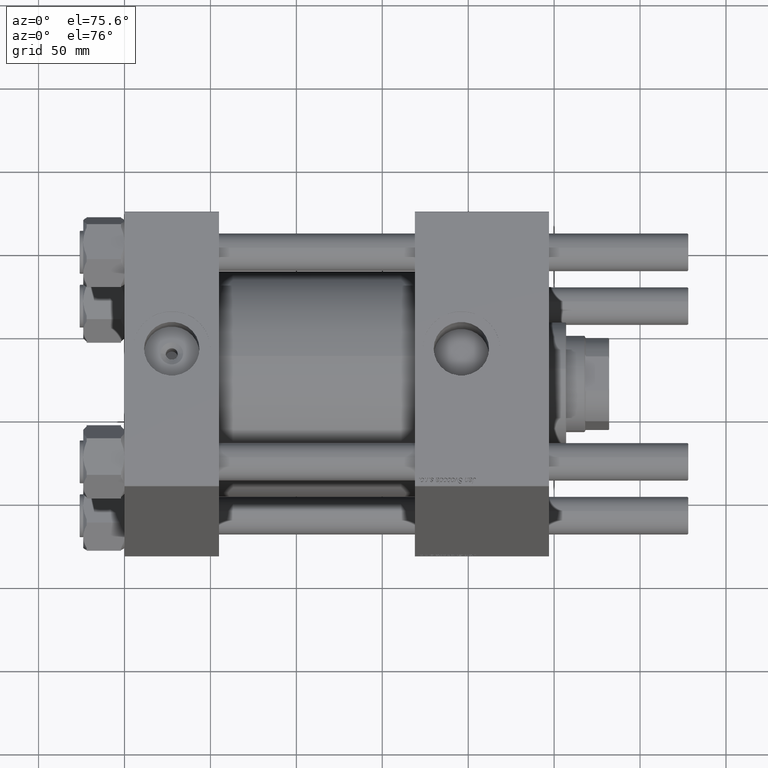
[diagram: clean part render]
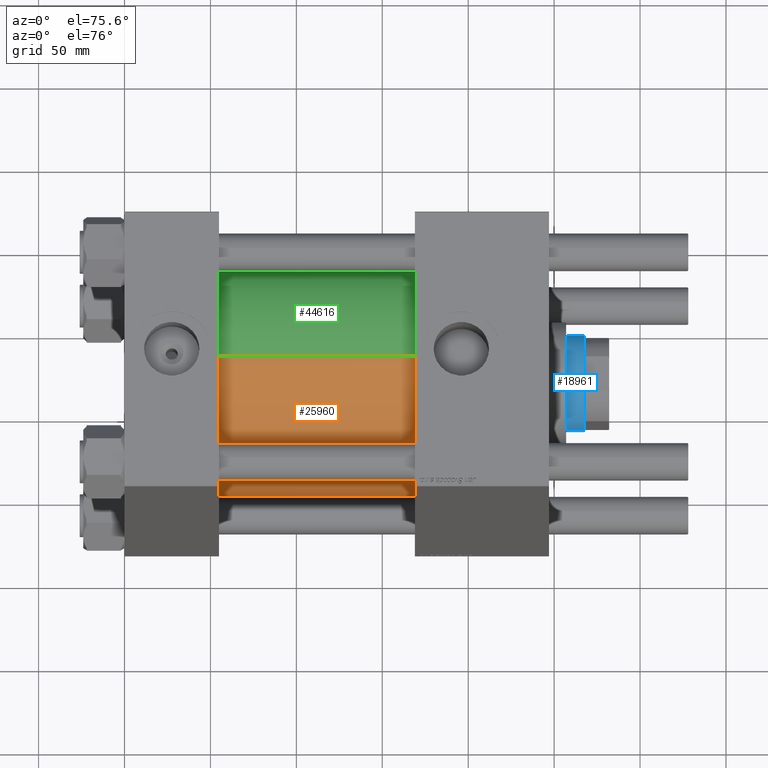
[diagram: same view with three faces highlighted in distinct colors, each labeled with its STEP entity id]
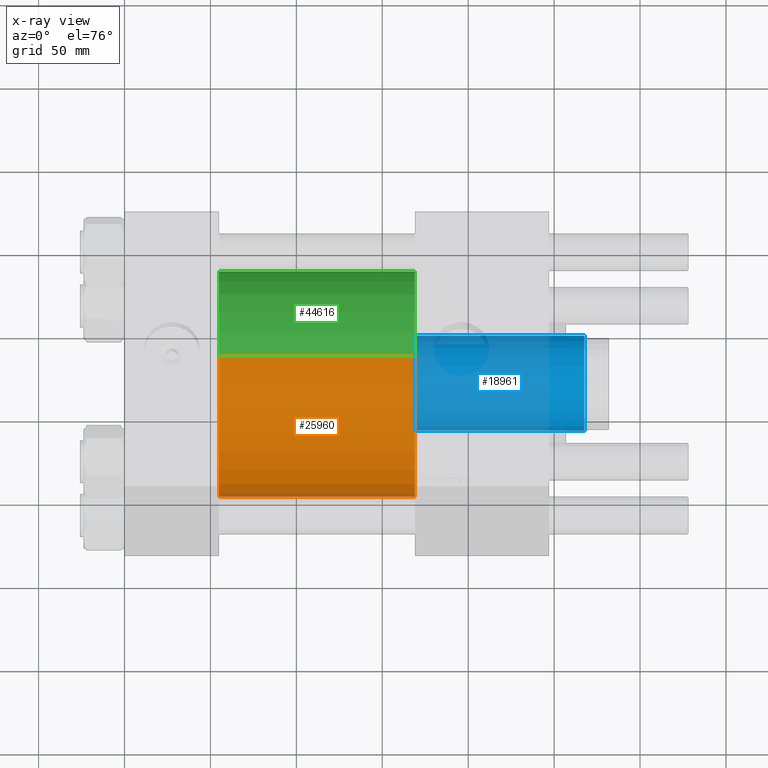
[diagram: x-ray of the same camera — body ghosted, the three highlighted faces saturated]
A machine part, auxiliary view with three faces highlighted in distinct colors.
The next image is the same camera in x-ray (body ghosted, the three faces saturated) — at least one of them is partly hidden behind the body in this view.
Their STEP definitions:

[orange] entity #25960 — the highlighted cylindrical surface (partial cylindrical patch) has radius 65.5 mm, axis along (-1, -0, -0).
#309 = DIRECTION ( 'NONE',  ( -1.000000000000000000, -0.000000000000000000, -0.000000000000000000 ) ) ;
#692 = CARTESIAN_POINT ( 'NONE',  ( 54.99999999999999289, -2.602085213965210642E-15, 0.000000000000000000 ) ) ;
#1343 = CARTESIAN_POINT ( 'NONE',  ( 169.0000000000000000, 5.419351320449953395E-15, -65.50000000000001421 ) ) ;
#2326 = CARTESIAN_POINT ( 'NONE',  ( 169.0000000000000000, -2.602085213965210642E-15, 0.000000000000000000 ) ) ;
#3077 = VECTOR ( 'NONE', #37354, 1000.000000000000000 ) ;
#4194 = CIRCLE ( 'NONE', #44869, 65.50000000000001421 ) ;
#5454 = CARTESIAN_POINT ( 'NONE',  ( 169.0000000000000000, -2.602085213965210642E-15, 65.50000000000001421 ) ) ;
#5667 = ORIENTED_EDGE ( 'NONE', *, *, #10300, .F. ) ;
#7617 = EDGE_CURVE ( 'NONE', #14203, #43502, #30720, .T. ) ;
#7890 = ORIENTED_EDGE ( 'NONE', *, *, #7617, .F. ) ;
#9128 = CARTESIAN_POINT ( 'NONE',  ( 169.0000000000000000, -2.602085213965210642E-15, 0.000000000000000000 ) ) ;
#9375 = CIRCLE ( 'NONE', #53746, 65.50000000000001421 ) ;
#10300 = EDGE_CURVE ( 'NONE', #54326, #14203, #9375, .T. ) ;
#10948 = CARTESIAN_POINT ( 'NONE',  ( 54.99999999999999289, 5.419351320449953395E-15, -65.50000000000001421 ) ) ;
#14203 = VERTEX_POINT ( 'NONE', #1343 ) ;
#14324 = DIRECTION ( 'NONE',  ( 0.000000000000000000, 0.000000000000000000, -1.000000000000000000 ) ) ;
#14601 = ORIENTED_EDGE ( 'NONE', *, *, #21754, .T. ) ;
#15437 = EDGE_LOOP ( 'NONE', ( #7890, #5667, #14601, #41701 ) ) ;
#16175 = VERTEX_POINT ( 'NONE', #56123 ) ;
#18362 = DIRECTION ( 'NONE',  ( 1.000000000000000000, -0.000000000000000000, -0.000000000000000000 ) ) ;
#19997 = DIRECTION ( 'NONE',  ( -1.000000000000000000, -0.000000000000000000, -0.000000000000000000 ) ) ;
#21754 = EDGE_CURVE ( 'NONE', #54326, #16175, #28123, .T. ) ;
#25960 = ADVANCED_FACE ( 'NONE', ( #33869 ), #46312, .T. ) ;
#26799 = DIRECTION ( 'NONE',  ( 1.000000000000000000, 0.000000000000000000, 0.000000000000000000 ) ) ;
#28123 = LINE ( 'NONE', #28408, #3077 ) ;
#28408 = CARTESIAN_POINT ( 'NONE',  ( 169.0000000000000000, -2.602085213965210642E-15, 65.50000000000001421 ) ) ;
#29617 = VECTOR ( 'NONE', #309, 1000.000000000000000 ) ;
#30720 = LINE ( 'NONE', #39956, #29617 ) ;
#32792 = DIRECTION ( 'NONE',  ( 0.000000000000000000, 0.000000000000000000, 1.000000000000000000 ) ) ;
#33869 = FACE_OUTER_BOUND ( 'NONE', #15437, .T. ) ;
#37354 = DIRECTION ( 'NONE',  ( -1.000000000000000000, -0.000000000000000000, -0.000000000000000000 ) ) ;
#37632 = DIRECTION ( 'NONE',  ( 0.000000000000000000, 0.000000000000000000, 1.000000000000000000 ) ) ;
#39956 = CARTESIAN_POINT ( 'NONE',  ( 169.0000000000000000, 5.419351320449953395E-15, -65.50000000000001421 ) ) ;
#41701 = ORIENTED_EDGE ( 'NONE', *, *, #44081, .T. ) ;
#43502 = VERTEX_POINT ( 'NONE', #10948 ) ;
#44081 = EDGE_CURVE ( 'NONE', #16175, #43502, #4194, .T. ) ;
#44869 = AXIS2_PLACEMENT_3D ( 'NONE', #692, #18362, #32792 ) ;
#46312 = CYLINDRICAL_SURFACE ( 'NONE', #54962, 65.50000000000001421 ) ;
#53746 = AXIS2_PLACEMENT_3D ( 'NONE', #9128, #26799, #14324 ) ;
#54326 = VERTEX_POINT ( 'NONE', #5454 ) ;
#54962 = AXIS2_PLACEMENT_3D ( 'NONE', #2326, #19997, #37632 ) ;
#56123 = CARTESIAN_POINT ( 'NONE',  ( 54.99999999999999289, -2.602085213965210642E-15, 65.50000000000001421 ) ) ;

[blue] entity #18961 — the highlighted cylindrical surface (partial cylindrical patch) has radius 28 mm, axis along (-1, 0, 0).
#1183 = DIRECTION ( 'NONE',  ( -0.000000000000000000, -0.000000000000000000, -1.000000000000000000 ) ) ;
#2202 = EDGE_CURVE ( 'NONE', #14046, #22611, #10168, .T. ) ;
#2395 = CARTESIAN_POINT ( 'NONE',  ( -28.00000000000000000, 0.000000000000000000, 213.0000000000000000 ) ) ;
#8177 = VERTEX_POINT ( 'NONE', #41165 ) ;
#9659 = EDGE_CURVE ( 'NONE', #56250, #8177, #42039, .T. ) ;
#10168 = LINE ( 'NONE', #28672, #26761 ) ;
#10221 = CYLINDRICAL_SURFACE ( 'NONE', #23379, 28.00000000000000000 ) ;
#11825 = CARTESIAN_POINT ( 'NONE',  ( 28.00000000000000000, 3.429011037612589276E-15, 212.5000000000000000 ) ) ;
#12061 = EDGE_LOOP ( 'NONE', ( #30792, #53890, #15997, #27213 ) ) ;
#14046 = VERTEX_POINT ( 'NONE', #11825 ) ;
#15427 = EDGE_CURVE ( 'NONE', #14046, #56250, #40019, .T. ) ;
#15997 = ORIENTED_EDGE ( 'NONE', *, *, #9659, .T. ) ;
#16186 = EDGE_CURVE ( 'NONE', #8177, #22611, #39103, .T. ) ;
#16470 = DIRECTION ( 'NONE',  ( 0.000000000000000000, 0.000000000000000000, 1.000000000000000000 ) ) ;
#18961 = ADVANCED_FACE ( 'NONE', ( #32777 ), #10221, .T. ) ;
#20813 = CARTESIAN_POINT ( 'NONE',  ( 0.000000000000000000, 0.000000000000000000, 64.00000000000000000 ) ) ;
#21089 = CARTESIAN_POINT ( 'NONE',  ( 0.000000000000000000, 0.000000000000000000, 212.5000000000000000 ) ) ;
#22611 = VERTEX_POINT ( 'NONE', #44892 ) ;
#23379 = AXIS2_PLACEMENT_3D ( 'NONE', #54775, #27882, #50432 ) ;
#24860 = DIRECTION ( 'NONE',  ( 1.000000000000000000, 0.000000000000000000, 0.000000000000000000 ) ) ;
#26072 = AXIS2_PLACEMENT_3D ( 'NONE', #21089, #52633, #56969 ) ;
#26761 = VECTOR ( 'NONE', #1183, 1000.000000000000000 ) ;
#27213 = ORIENTED_EDGE ( 'NONE', *, *, #16186, .T. ) ;
#27882 = DIRECTION ( 'NONE',  ( -0.000000000000000000, -0.000000000000000000, -1.000000000000000000 ) ) ;
#28672 = CARTESIAN_POINT ( 'NONE',  ( 28.00000000000000000, 3.429011037612589276E-15, 213.0000000000000000 ) ) ;
#30792 = ORIENTED_EDGE ( 'NONE', *, *, #2202, .F. ) ;
#32777 = FACE_OUTER_BOUND ( 'NONE', #12061, .T. ) ;
#39103 = CIRCLE ( 'NONE', #46361, 28.00000000000000000 ) ;
#40019 = CIRCLE ( 'NONE', #26072, 28.00000000000000000 ) ;
#41165 = CARTESIAN_POINT ( 'NONE',  ( -28.00000000000000000, 0.000000000000000000, 64.00000000000000000 ) ) ;
#41754 = DIRECTION ( 'NONE',  ( -0.000000000000000000, -0.000000000000000000, -1.000000000000000000 ) ) ;
#41902 = CARTESIAN_POINT ( 'NONE',  ( -28.00000000000000000, 0.000000000000000000, 212.5000000000000000 ) ) ;
#42039 = LINE ( 'NONE', #2395, #49076 ) ;
#44892 = CARTESIAN_POINT ( 'NONE',  ( 28.00000000000000000, 3.429011037612589276E-15, 64.00000000000000000 ) ) ;
#46361 = AXIS2_PLACEMENT_3D ( 'NONE', #20813, #16470, #24860 ) ;
#49076 = VECTOR ( 'NONE', #41754, 1000.000000000000000 ) ;
#50432 = DIRECTION ( 'NONE',  ( -1.000000000000000000, 0.000000000000000000, 0.000000000000000000 ) ) ;
#52633 = DIRECTION ( 'NONE',  ( 0.000000000000000000, 0.000000000000000000, -1.000000000000000000 ) ) ;
#53890 = ORIENTED_EDGE ( 'NONE', *, *, #15427, .T. ) ;
#54775 = CARTESIAN_POINT ( 'NONE',  ( 0.000000000000000000, 0.000000000000000000, 213.0000000000000000 ) ) ;
#56250 = VERTEX_POINT ( 'NONE', #41902 ) ;
#56969 = DIRECTION ( 'NONE',  ( 1.000000000000000000, 0.000000000000000000, 0.000000000000000000 ) ) ;

[green] entity #44616 — the highlighted cylindrical surface (partial cylindrical patch) has radius 65.5 mm, axis along (-1, -0, -0).
#309 = DIRECTION ( 'NONE',  ( -1.000000000000000000, -0.000000000000000000, -0.000000000000000000 ) ) ;
#1343 = CARTESIAN_POINT ( 'NONE',  ( 169.0000000000000000, 5.419351320449953395E-15, -65.50000000000001421 ) ) ;
#2235 = CARTESIAN_POINT ( 'NONE',  ( 169.0000000000000000, -2.602085213965210642E-15, 0.000000000000000000 ) ) ;
#3077 = VECTOR ( 'NONE', #37354, 1000.000000000000000 ) ;
#5374 = CARTESIAN_POINT ( 'NONE',  ( 169.0000000000000000, -2.602085213965210642E-15, 0.000000000000000000 ) ) ;
#5454 = CARTESIAN_POINT ( 'NONE',  ( 169.0000000000000000, -2.602085213965210642E-15, 65.50000000000001421 ) ) ;
#7406 = EDGE_CURVE ( 'NONE', #43502, #16175, #54568, .T. ) ;
#7617 = EDGE_CURVE ( 'NONE', #14203, #43502, #30720, .T. ) ;
#10830 = ORIENTED_EDGE ( 'NONE', *, *, #21754, .F. ) ;
#10833 = EDGE_LOOP ( 'NONE', ( #30989, #47458, #33526, #10830 ) ) ;
#10948 = CARTESIAN_POINT ( 'NONE',  ( 54.99999999999999289, 5.419351320449953395E-15, -65.50000000000001421 ) ) ;
#13994 = DIRECTION ( 'NONE',  ( 0.000000000000000000, 0.000000000000000000, 1.000000000000000000 ) ) ;
#14203 = VERTEX_POINT ( 'NONE', #1343 ) ;
#14641 = DIRECTION ( 'NONE',  ( 0.000000000000000000, 0.000000000000000000, -1.000000000000000000 ) ) ;
#15128 = DIRECTION ( 'NONE',  ( 1.000000000000000000, -0.000000000000000000, -0.000000000000000000 ) ) ;
#16175 = VERTEX_POINT ( 'NONE', #56123 ) ;
#16200 = AXIS2_PLACEMENT_3D ( 'NONE', #2235, #33495, #50871 ) ;
#17284 = CIRCLE ( 'NONE', #41258, 65.50000000000001421 ) ;
#21319 = AXIS2_PLACEMENT_3D ( 'NONE', #40870, #15128, #13994 ) ;
#21754 = EDGE_CURVE ( 'NONE', #54326, #16175, #28123, .T. ) ;
#28123 = LINE ( 'NONE', #28408, #3077 ) ;
#28408 = CARTESIAN_POINT ( 'NONE',  ( 169.0000000000000000, -2.602085213965210642E-15, 65.50000000000001421 ) ) ;
#29617 = VECTOR ( 'NONE', #309, 1000.000000000000000 ) ;
#30720 = LINE ( 'NONE', #39956, #29617 ) ;
#30989 = ORIENTED_EDGE ( 'NONE', *, *, #52608, .F. ) ;
#32284 = DIRECTION ( 'NONE',  ( 1.000000000000000000, 0.000000000000000000, 0.000000000000000000 ) ) ;
#33495 = DIRECTION ( 'NONE',  ( -1.000000000000000000, -0.000000000000000000, -0.000000000000000000 ) ) ;
#33526 = ORIENTED_EDGE ( 'NONE', *, *, #7406, .T. ) ;
#37354 = DIRECTION ( 'NONE',  ( -1.000000000000000000, -0.000000000000000000, -0.000000000000000000 ) ) ;
#39956 = CARTESIAN_POINT ( 'NONE',  ( 169.0000000000000000, 5.419351320449953395E-15, -65.50000000000001421 ) ) ;
#40870 = CARTESIAN_POINT ( 'NONE',  ( 54.99999999999999289, -2.602085213965210642E-15, 0.000000000000000000 ) ) ;
#41258 = AXIS2_PLACEMENT_3D ( 'NONE', #5374, #32284, #14641 ) ;
#41882 = FACE_OUTER_BOUND ( 'NONE', #10833, .T. ) ;
#42459 = CYLINDRICAL_SURFACE ( 'NONE', #16200, 65.50000000000001421 ) ;
#43502 = VERTEX_POINT ( 'NONE', #10948 ) ;
#44616 = ADVANCED_FACE ( 'NONE', ( #41882 ), #42459, .T. ) ;
#47458 = ORIENTED_EDGE ( 'NONE', *, *, #7617, .T. ) ;
#50871 = DIRECTION ( 'NONE',  ( 0.000000000000000000, 0.000000000000000000, 1.000000000000000000 ) ) ;
#52608 = EDGE_CURVE ( 'NONE', #14203, #54326, #17284, .T. ) ;
#54326 = VERTEX_POINT ( 'NONE', #5454 ) ;
#54568 = CIRCLE ( 'NONE', #21319, 65.50000000000001421 ) ;
#56123 = CARTESIAN_POINT ( 'NONE',  ( 54.99999999999999289, -2.602085213965210642E-15, 65.50000000000001421 ) ) ;